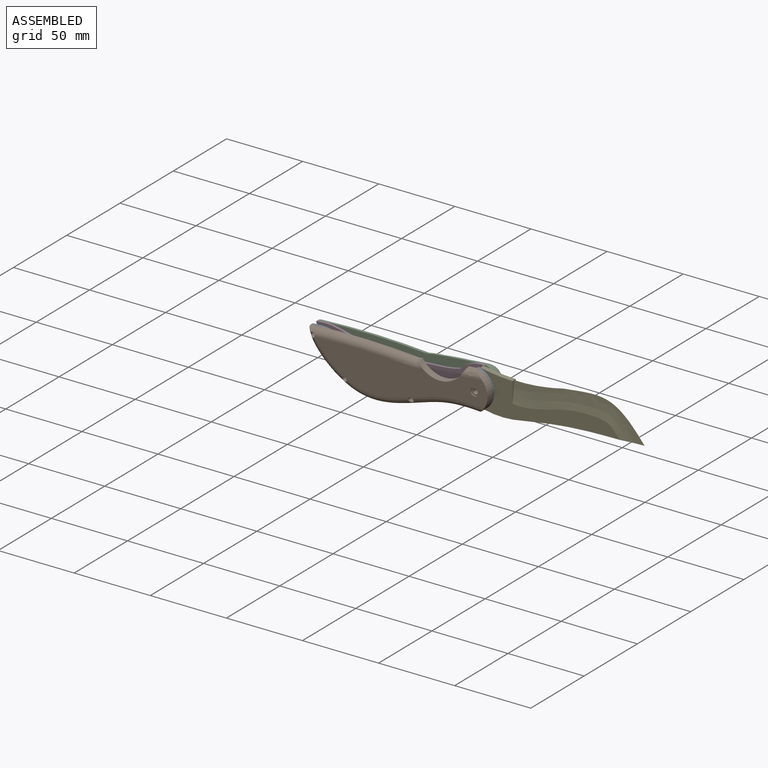
[diagram: assembled view]
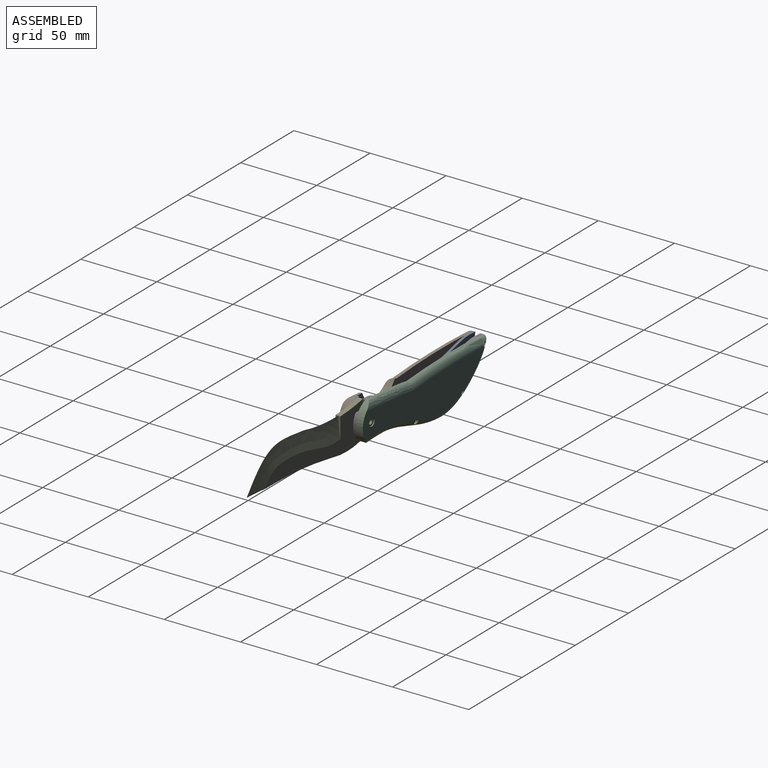
[diagram: assembled view, second angle]
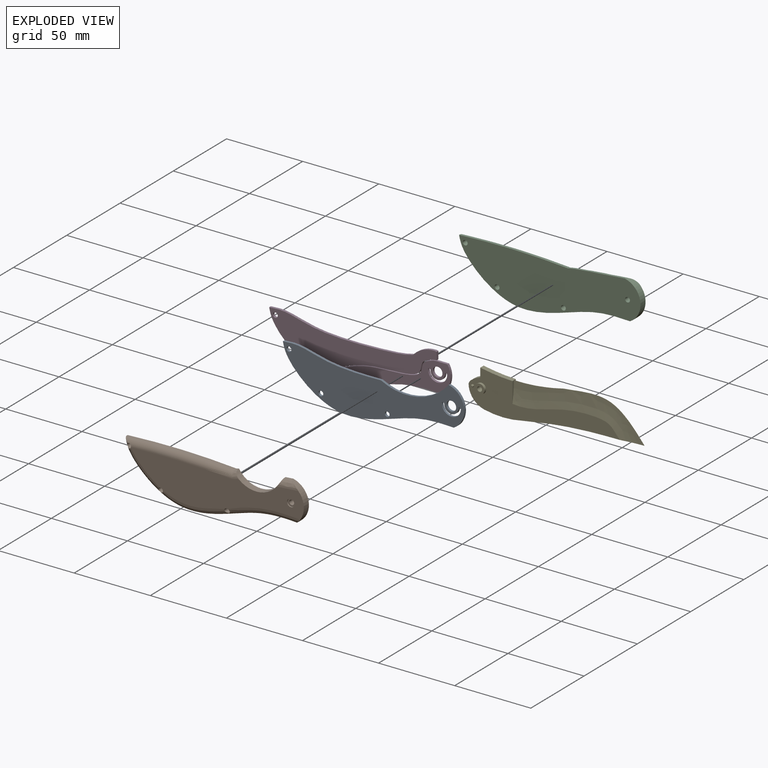
[diagram: exploded view]
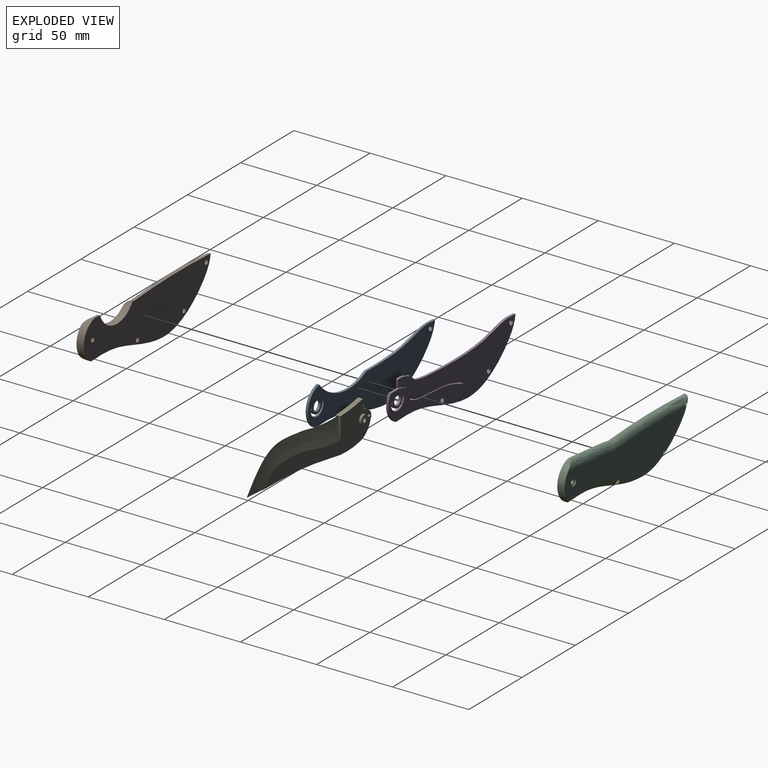
[diagram: exploded view, second angle]
ASSEMBLY  parts=5 mates=3
PART A: 17 faces, bbox 119.2x1.6x36.9 mm
  f0: cylinder r=13.22mm len=24.5mm, axis (0,1,0), area 50.8mm2, adj f13,f14,f15,f16
  f1: extruded ~64.49x6.46mm, area 103.4mm2, adj f13,f14,f15,f16
  f2: cylinder r=4.71mm len=1.59mm, axis (0,1,0), area 0mm2, adj f3,f12,f14,f15
  f3: cylinder r=0.79mm len=1.59mm, axis (0,1,0), area 0.1mm2, adj f2,f4,f14,f15
  f4: cylinder r=4.71mm len=9.42mm, axis (0,1,0), area 23.4mm2, adj f3,f5,f14,f15
  f5: cylinder r=0.79mm len=1.59mm, axis (0,1,0), area 4mm2, adj f4,f6,f14,f15
  f6: cylinder r=6.29mm len=12.58mm, axis (0,1,0), area 31.1mm2, adj f5,f7,f14,f15
  f7: cylinder r=0.79mm len=1.59mm, axis (0,1,0), area 0.1mm2, adj f6,f12,f14,f15
  f8: cylinder r=3.17mm len=6.35mm, axis (0,1,0), area 31.7mm2, adj f14,f15
  f9: cylinder r=1.59mm len=3.18mm, axis (0,1,0), area 15.8mm2, adj f14,f15
  f10: cylinder r=1.59mm len=3.18mm, axis (0,1,0), area 15.8mm2, adj f14,f15
  f11: cylinder r=1.59mm len=3.18mm, axis (0,1,0), area 15.8mm2, adj f14,f15
  f12: cylinder r=0.79mm len=1.59mm, axis (0,1,0), area 3.8mm2, adj f2,f7,f14,f15
  f13: extruded ~112.31x32.58mm, area 203.4mm2, adj f0,f1,f14,f15
  f14: plane 119.21x36.93mm, normal (0,-1,0), area 2285.8mm2, adj f0,f1,f2,f3,f4,f5,f6,f7
  f15: plane 119.21x36.93mm, normal (0,1,0), area 2285.8mm2, adj f0,f1,f2,f3,f4,f5,f6,f7
  f16: cylinder r=35.65mm len=44.43mm, axis (0,-1,0), area 78.1mm2, adj f0,f1,f14,f15
PART B: 18 faces, bbox 120.4x4.8x37.6 mm
  f0: extruded ~1.85x0.47mm, area 0.9mm2, adj f1,f3,f9,f17
  f1: bspline ~7.9x5.45mm, area 23.7mm2, adj f0,f10,f15,f17
  f2: extruded ~5.04x0.47mm, area 2.4mm2, adj f8,f9,f14,f17
  f3: cylinder r=522.86mm len=71.44mm, axis (0,-1,0), area 33.6mm2, adj f0,f4,f9,f15
  f4: extruded ~112.31x32.58mm, area 60.2mm2, adj f3,f8,f9,f16
  f5: cylinder r=1.59mm len=4.76mm, axis (0,-1,0), area 42.5mm2, adj f9,f15,f16
  f6: cylinder r=1.59mm len=4.76mm, axis (0,-1,0), area 44mm2, adj f9,f10,f16
  f7: cylinder r=1.59mm len=4.76mm, axis (0,-1,0), area 42.3mm2, adj f9,f10,f16
  f8: cylinder r=13.22mm len=24.5mm, axis (0,-1,0), area 136.6mm2, adj f2,f4,f9,f10,f14,f16
  f9: plane 119.21x36.93mm, normal (0,1,0), area 2768.5mm2, adj f0,f2,f3,f4,f5,f6,f7,f8
  f10: plane 113.57x27.76mm, normal (0,-1,0), area 1887.7mm2, adj f1,f6,f7,f8,f13,f14,f15,f16
  f11: cylinder r=1.59mm len=3.97mm, axis (0,-1,0), area 39.6mm2, adj f9,f12
  f12: plane 5.08x5.08mm, normal (0,-1,0), area 12.4mm2, adj f11,f13
  f13: cylinder r=2.54mm len=5.08mm, axis (0,-1,0), area 12.7mm2, adj f10,f12
  f14: bspline ~21.91x6.01mm, area 65.5mm2, adj f2,f8,f10,f17
  f15: torus R=518.57mm, axis (0,-1,0), area 467.2mm2, adj f1,f3,f5,f10,f16
  f16: bspline ~120.44x35.46mm, area 827.4mm2, adj f4,f5,f6,f7,f8,f10,f15
  f17: cylinder r=17.24mm len=30.59mm, axis (0,-1,0), area 171.9mm2, adj f0,f1,f2,f9,f10,f14
PART C: 15 faces, bbox 120.4x4.8x37.6 mm
  f0: extruded ~37.48x3.95mm, area 17.7mm2, adj f1,f6,f7,f12
  f1: cylinder r=522.86mm len=71.44mm, axis (0,1,0), area 33.6mm2, adj f0,f2,f7,f13
  f2: extruded ~112.31x32.58mm, area 60.2mm2, adj f1,f6,f7,f14
  f3: cylinder r=1.59mm len=4.76mm, axis (0,1,0), area 42.5mm2, adj f7,f13,f14
  f4: cylinder r=1.59mm len=4.76mm, axis (0,1,0), area 44mm2, adj f7,f8,f14
  f5: cylinder r=1.59mm len=4.76mm, axis (0,1,0), area 42.3mm2, adj f7,f8,f14
  f6: cylinder r=13.22mm len=24.5mm, axis (0,1,0), area 136.6mm2, adj f0,f2,f7,f8,f12,f14
  f7: plane 119.21x36.93mm, normal (0,-1,0), area 2980.2mm2, adj f0,f1,f2,f3,f4,f5,f6,f9
  f8: plane 113.57x27.76mm, normal (0,1,0), area 1978.8mm2, adj f4,f5,f6,f11,f12,f13,f14
  f9: cylinder r=1.59mm len=3.97mm, axis (0,1,0), area 39.6mm2, adj f7,f10
  f10: plane 5.08x5.08mm, normal (0,1,0), area 12.4mm2, adj f9,f11
  f11: cylinder r=2.54mm len=5.08mm, axis (0,1,0), area 12.7mm2, adj f8,f10
  f12: bspline ~47.85x9.04mm, area 276.3mm2, adj f0,f6,f8,f13
  f13: torus R=518.57mm, axis (0,1,0), area 467.2mm2, adj f1,f3,f8,f12,f14
  f14: bspline ~120.44x35.46mm, area 827.4mm2, adj f2,f3,f4,f5,f6,f8,f13
PART D: 23 faces, bbox 119.2x1.6x36.9 mm
  f0: cylinder r=13.22mm len=1.59mm, axis (0,-1,0), area 1.8mm2, adj f2,f3,f4,f18
  f1: cylinder r=13.22mm len=18.66mm, axis (0,-1,0), area 34.3mm2, adj f2,f3,f17,f19
  f2: plane 119.21x36.94mm, normal (0,1,0), area 2408mm2, adj f0,f1,f4,f5,f6,f7,f8,f9
  f3: plane 119.21x36.94mm, normal (0,-1,0), area 2408mm2, adj f0,f1,f4,f5,f6,f7,f8,f9
  f4: cylinder r=18.91mm len=14.49mm, axis (0,-1,0), area 25.9mm2, adj f0,f2,f3,f5
  f5: extruded ~94.43x6.46mm, area 151.2mm2, adj f2,f3,f4,f17
  f6: cylinder r=4.71mm len=1.59mm, axis (0,-1,0), area 0mm2, adj f2,f3,f7,f16
  f7: cylinder r=0.79mm len=1.59mm, axis (0,-1,0), area 0.1mm2, adj f2,f3,f6,f8
  f8: cylinder r=4.71mm len=9.42mm, axis (0,-1,0), area 23.4mm2, adj f2,f3,f7,f9
  f9: cylinder r=0.79mm len=1.59mm, axis (0,-1,0), area 4mm2, adj f2,f3,f8,f10
  f10: cylinder r=6.29mm len=12.58mm, axis (0,-1,0), area 31.1mm2, adj f2,f3,f9,f11
  f11: cylinder r=0.79mm len=1.59mm, axis (0,-1,0), area 0.1mm2, adj f2,f3,f10,f16
  f12: cylinder r=3.17mm len=6.35mm, axis (0,-1,0), area 31.7mm2, adj f2,f3
  f13: cylinder r=1.59mm len=3.18mm, axis (0,-1,0), area 15.8mm2, adj f2,f3
  f14: cylinder r=1.59mm len=3.18mm, axis (0,-1,0), area 15.8mm2, adj f2,f3
  f15: cylinder r=1.59mm len=3.18mm, axis (0,-1,0), area 15.8mm2, adj f2,f3
  f16: cylinder r=0.79mm len=1.59mm, axis (0,-1,0), area 3.8mm2, adj f2,f3,f6,f11
  f17: extruded ~112.31x32.58mm, area 203.4mm2, adj f1,f2,f3,f5
  f18: plane 5.03x1.59mm, normal (1,0,0), area 8mm2, adj f0,f2,f3,f20
  f19: plane 7.14x1.59mm, normal (0,0,1), area 11.3mm2, adj f1,f2,f3,f21
  f20: extruded ~61.1x20.13mm, area 108.5mm2, adj f2,f3,f18,f22
  f21: extruded ~60.91x20.09mm, area 108.2mm2, adj f2,f3,f19,f22
  f22: plane 1.59x0.47mm, normal (0.93,0,0.38), area 0.8mm2, adj f2,f3,f20,f21
PART E: 22 faces, bbox 120.9x10.3x47 mm
  f0: plane 99.72x25.56mm, normal (0,-1,0), area 1158.1mm2, adj f1,f2,f4,f5,f7,f8,f13,f15
  f1: cylinder r=121.32mm len=53.66mm, axis (0,1,0), area 70.8mm2, adj f0,f3,f6,f7,f8,f9,f10,f15
  f2: cylinder r=13.25mm len=12.83mm, axis (0,1,0), area 55.5mm2, adj f0,f3,f4,f21
  f3: plane 99.72x25.56mm, normal (0,1,0), area 1158.1mm2, adj f1,f2,f4,f5,f9,f10,f12,f15
  f4: cylinder r=58.05mm len=25.4mm, axis (0,1,0), area 81.3mm2, adj f0,f2,f3,f5
  f5: extruded ~79.12x5.72mm, area 224.8mm2, adj f0,f3,f4,f6,f8,f10
  f6: extruded ~53.12x21.67mm, area 10.1mm2, adj f1,f5,f8,f10
  f7: plane 13.54x1.6mm, normal (-1,0,0), area 13.3mm2, adj f0,f1,f8
  f8: bspline ~91.78x46.99mm, area 1022mm2, adj f0,f1,f5,f6,f7
  f9: plane 13.54x1.6mm, normal (-1,0,0), area 13.3mm2, adj f1,f3,f10
  f10: bspline ~91.78x46.99mm, area 1022mm2, adj f1,f3,f5,f6,f9
  f11: plane 6.35x6.35mm, normal (0,1,0), area 23.8mm2, adj f12,f16
  f12: cylinder r=3.17mm len=6.35mm, axis (0,1,0), area 31.7mm2, adj f3,f11
  f13: cylinder r=3.17mm len=6.35mm, axis (0,1,0), area 31.7mm2, adj f0,f14
  f14: plane 6.35x6.35mm, normal (0,-1,0), area 23.8mm2, adj f13,f16
  f15: plane 5.74x3.18mm, normal (1,0,0), area 18.2mm2, adj f0,f1,f3,f21
  f16: cylinder r=1.59mm len=6.35mm, axis (0,-1,0), area 63.3mm2, adj f11,f14
  f17: cylinder r=0.79mm len=1.59mm, axis (0,1,0), area 7.9mm2, adj f0,f18
  f18: plane 1.59x1.59mm, normal (0,-1,0), area 2mm2, adj f17
  f19: cylinder r=0.79mm len=1.59mm, axis (0,-1,0), area 7.9mm2, adj f3,f20
  f20: plane 1.59x1.59mm, normal (0,1,0), area 2mm2, adj f19
  f21: extruded ~7.7x5.58mm, area 31mm2, adj f0,f2,f3,f15
PLACE A t=(7.14,-78.83,-32.66)mm fixed
PLACE B t=(7.14,-85.18,-32.66)mm
PLACE C t=(7.14,-69.31,-32.66)mm
PLACE D t=(7.14,-75.66,-32.66)mm
PLACE E rot(axis=(0,1,0),180deg) t=(48.08,-77.24,-31.36)mm
MATE revolute E.f12 <-> A.f2  axis (0,-1,0) through (27.61,-78.83,-32.02)mm
MATE fastened C.f5 <-> D.f15  axis (0,-1,0) through (-14.56,-74.07,-48.12)mm
MATE fastened B.f7 <-> A.f11  axis (0,1,0) through (-14.56,-80.42,-48.12)mm
